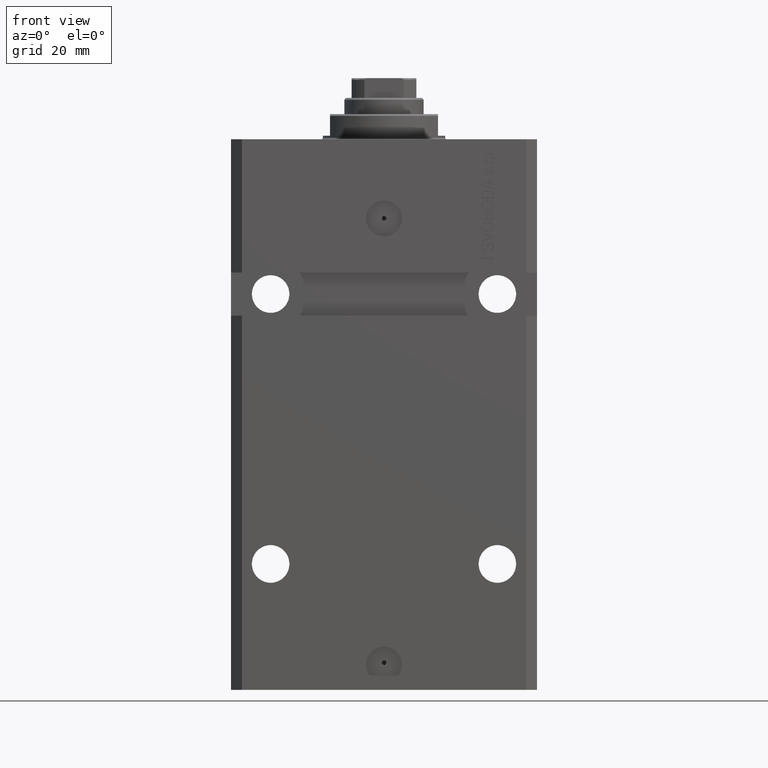
[diagram: clean part render]
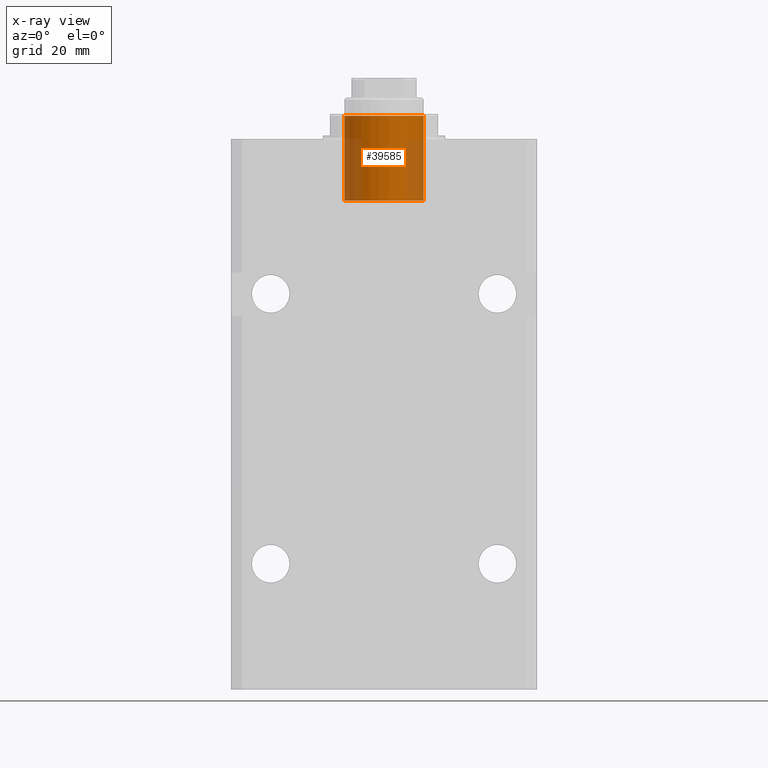
[diagram: x-ray — body ghosted, one internal face saturated and labeled with its STEP entity id]
A machine part, front view, then the same camera in x-ray: the body is ghosted and one INTERNAL B-rep face — a face not visible from any outside direction — is saturated and labeled: STEP entity #39585.
In plain terms, the highlighted cylindrical surface (partial cylindrical patch) has radius 11 mm, axis along (0, -0, 1).
Its self-contained STEP definition (entity closure, byte-faithful):
#158 = CARTESIAN_POINT ( 'NONE',  ( 0.000000000000000000, 0.000000000000000000, 17.00000000000000000 ) ) ;
#1234 = CARTESIAN_POINT ( 'NONE',  ( -11.00000000000000000, 0.000000000000000000, 17.00000000000000000 ) ) ;
#1250 = CARTESIAN_POINT ( 'NONE',  ( 0.000000000000000000, 0.000000000000000000, -6.499999999999992006 ) ) ;
#1358 = EDGE_CURVE ( 'NONE', #33593, #31108, #19019, .T. ) ;
#3598 = ORIENTED_EDGE ( 'NONE', *, *, #6758, .T. ) ;
#4931 = VECTOR ( 'NONE', #35520, 1000.000000000000000 ) ;
#5507 = CARTESIAN_POINT ( 'NONE',  ( 11.00000000000000000, 1.347111479062088405E-15, 17.00000000000000000 ) ) ;
#6758 = EDGE_CURVE ( 'NONE', #33593, #15232, #24217, .T. ) ;
#11269 = CARTESIAN_POINT ( 'NONE',  ( 0.000000000000000000, 0.000000000000000000, 17.00000000000000000 ) ) ;
#12022 = AXIS2_PLACEMENT_3D ( 'NONE', #1250, #16256, #31267 ) ;
#13617 = EDGE_LOOP ( 'NONE', ( #33814, #3598, #41345, #18648 ) ) ;
#14323 = CARTESIAN_POINT ( 'NONE',  ( -11.00000000000000000, 0.000000000000000000, -6.499999999999992006 ) ) ;
#14992 = CARTESIAN_POINT ( 'NONE',  ( 11.00000000000000000, 1.347111479062088405E-15, -6.499999999999992006 ) ) ;
#15232 = VERTEX_POINT ( 'NONE', #14992 ) ;
#15592 = CARTESIAN_POINT ( 'NONE',  ( -11.00000000000000000, 0.000000000000000000, 17.00000000000000000 ) ) ;
#16256 = DIRECTION ( 'NONE',  ( 0.000000000000000000, 0.000000000000000000, -1.000000000000000000 ) ) ;
#17942 = VECTOR ( 'NONE', #45361, 1000.000000000000000 ) ;
#18648 = ORIENTED_EDGE ( 'NONE', *, *, #36167, .F. ) ;
#18667 = FACE_OUTER_BOUND ( 'NONE', #13617, .T. ) ;
#19019 = CIRCLE ( 'NONE', #33938, 11.00000000000000000 ) ;
#19331 = EDGE_CURVE ( 'NONE', #15232, #27660, #33255, .T. ) ;
#24217 = LINE ( 'NONE', #5507, #4931 ) ;
#26286 = DIRECTION ( 'NONE',  ( -1.000000000000000000, 0.000000000000000000, 0.000000000000000000 ) ) ;
#27660 = VERTEX_POINT ( 'NONE', #14323 ) ;
#28987 = DIRECTION ( 'NONE',  ( 0.000000000000000000, 0.000000000000000000, -1.000000000000000000 ) ) ;
#30707 = CYLINDRICAL_SURFACE ( 'NONE', #40428, 11.00000000000000000 ) ;
#31108 = VERTEX_POINT ( 'NONE', #1234 ) ;
#31267 = DIRECTION ( 'NONE',  ( -1.000000000000000000, 0.000000000000000000, 0.000000000000000000 ) ) ;
#33255 = CIRCLE ( 'NONE', #12022, 11.00000000000000000 ) ;
#33593 = VERTEX_POINT ( 'NONE', #43446 ) ;
#33814 = ORIENTED_EDGE ( 'NONE', *, *, #1358, .F. ) ;
#33938 = AXIS2_PLACEMENT_3D ( 'NONE', #158, #28987, #40536 ) ;
#34037 = LINE ( 'NONE', #15592, #17942 ) ;
#35520 = DIRECTION ( 'NONE',  ( -0.000000000000000000, -0.000000000000000000, -1.000000000000000000 ) ) ;
#36167 = EDGE_CURVE ( 'NONE', #31108, #27660, #34037, .T. ) ;
#39585 = ADVANCED_FACE ( 'NONE', ( #18667 ), #30707, .F. ) ;
#40428 = AXIS2_PLACEMENT_3D ( 'NONE', #11269, #41554, #26286 ) ;
#40536 = DIRECTION ( 'NONE',  ( -1.000000000000000000, 0.000000000000000000, 0.000000000000000000 ) ) ;
#41345 = ORIENTED_EDGE ( 'NONE', *, *, #19331, .T. ) ;
#41554 = DIRECTION ( 'NONE',  ( -0.000000000000000000, -0.000000000000000000, -1.000000000000000000 ) ) ;
#43446 = CARTESIAN_POINT ( 'NONE',  ( 11.00000000000000000, 1.347111479062088405E-15, 17.00000000000000000 ) ) ;
#45361 = DIRECTION ( 'NONE',  ( -0.000000000000000000, -0.000000000000000000, -1.000000000000000000 ) ) ;